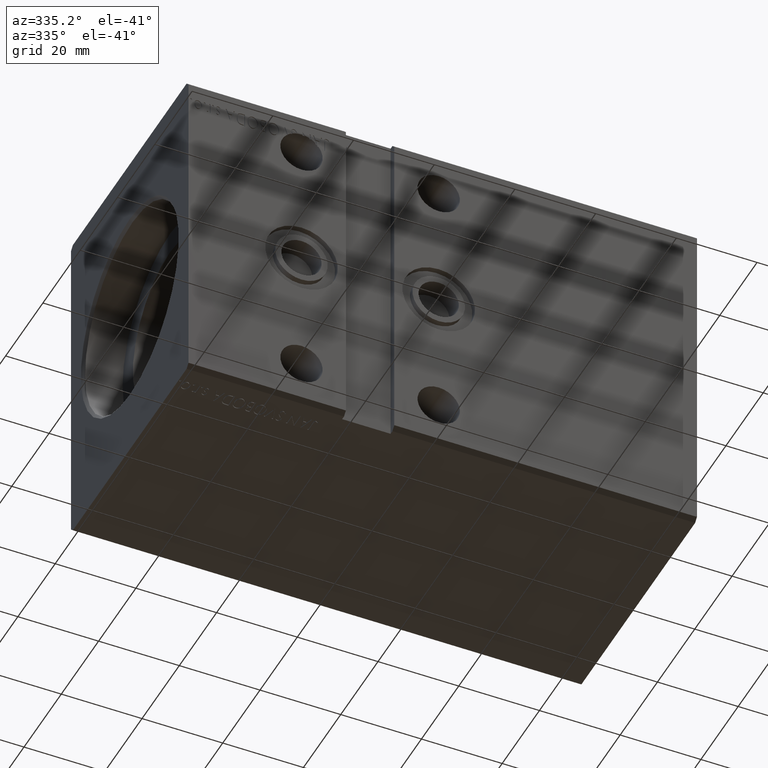
[diagram: clean part render]
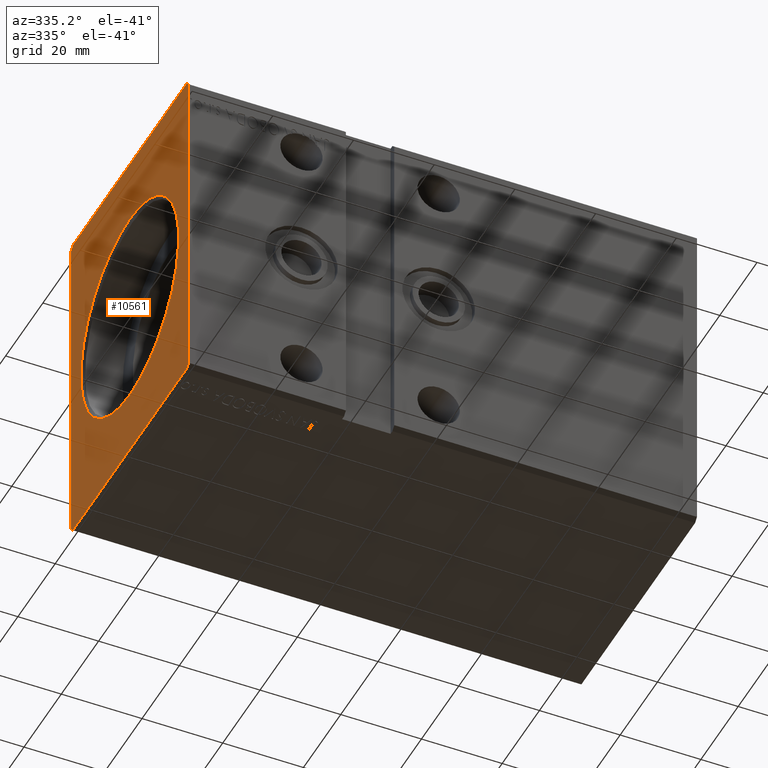
[diagram: same view with one face highlighted and labeled with its STEP entity id]
A machine part, auxiliary view. The second image highlights one B-rep face of the part: STEP entity #10561.
In plain terms, the highlighted planar face has unit normal (1, 0, 0).
Its self-contained STEP definition (entity closure, byte-faithful):
#853 = EDGE_CURVE ( 'NONE', #11930, #1156, #25419, .T. ) ;
#1024 = ORIENTED_EDGE ( 'NONE', *, *, #13849, .T. ) ;
#1156 = VERTEX_POINT ( 'NONE', #3594 ) ;
#1803 = PLANE ( 'NONE',  #23108 ) ;
#2254 = DIRECTION ( 'NONE',  ( 0.000000000000000000, 0.000000000000000000, -1.000000000000000000 ) ) ;
#2300 = EDGE_CURVE ( 'NONE', #1156, #5250, #6027, .T. ) ;
#2566 = CARTESIAN_POINT ( 'NONE',  ( 0.000000000000000000, 30.50000000000001776, -42.50000000000000711 ) ) ;
#2816 = VERTEX_POINT ( 'NONE', #11422 ) ;
#3594 = CARTESIAN_POINT ( 'NONE',  ( 0.000000000000000000, -30.50000000000000711, -42.50000000000000711 ) ) ;
#4939 = DIRECTION ( 'NONE',  ( 0.000000000000000000, 0.000000000000000000, 1.000000000000000000 ) ) ;
#5250 = VERTEX_POINT ( 'NONE', #2566 ) ;
#5342 = DIRECTION ( 'NONE',  ( 1.000000000000000000, 0.000000000000000000, 0.000000000000000000 ) ) ;
#5348 = CARTESIAN_POINT ( 'NONE',  ( 0.000000000000000000, 0.000000000000000000, 0.000000000000000000 ) ) ;
#5499 = DIRECTION ( 'NONE',  ( 0.000000000000000000, 0.000000000000000000, -1.000000000000000000 ) ) ;
#5519 = CARTESIAN_POINT ( 'NONE',  ( 0.000000000000000000, -30.50000000000000355, 42.49999999999999289 ) ) ;
#6027 = LINE ( 'NONE', #18544, #10334 ) ;
#6417 = ORIENTED_EDGE ( 'NONE', *, *, #10102, .F. ) ;
#7016 = VERTEX_POINT ( 'NONE', #32110 ) ;
#7850 = VERTEX_POINT ( 'NONE', #17894 ) ;
#7953 = CARTESIAN_POINT ( 'NONE',  ( 0.000000000000000000, -31.50000000000000000, -41.50000000000000711 ) ) ;
#8431 = LINE ( 'NONE', #30815, #35825 ) ;
#10102 = EDGE_CURVE ( 'NONE', #2816, #13351, #34808, .T. ) ;
#10189 = DIRECTION ( 'NONE',  ( 0.000000000000000000, -1.000000000000000000, 0.000000000000000000 ) ) ;
#10334 = VECTOR ( 'NONE', #39931, 1000.000000000000000 ) ;
#10561 = ADVANCED_FACE ( 'NONE', ( #36316, #14726 ), #1803, .F. ) ;
#11422 = CARTESIAN_POINT ( 'NONE',  ( 0.000000000000000000, 31.50000000000001421, 41.49999999999999289 ) ) ;
#11930 = VERTEX_POINT ( 'NONE', #7953 ) ;
#12414 = VERTEX_POINT ( 'NONE', #28424 ) ;
#12988 = EDGE_CURVE ( 'NONE', #32876, #12414, #29640, .T. ) ;
#13351 = VERTEX_POINT ( 'NONE', #18981 ) ;
#13543 = ORIENTED_EDGE ( 'NONE', *, *, #17190, .F. ) ;
#13849 = EDGE_CURVE ( 'NONE', #12414, #32876, #36846, .T. ) ;
#14153 = LINE ( 'NONE', #32865, #35167 ) ;
#14216 = VECTOR ( 'NONE', #16585, 1000.000000000000114 ) ;
#14362 = DIRECTION ( 'NONE',  ( 0.000000000000000000, -0.7071067811865462405, -0.7071067811865489050 ) ) ;
#14726 = FACE_OUTER_BOUND ( 'NONE', #23720, .T. ) ;
#15805 = DIRECTION ( 'NONE',  ( 0.000000000000000000, 0.7071067811865462405, 0.7071067811865489050 ) ) ;
#15930 = LINE ( 'NONE', #24964, #27235 ) ;
#16585 = DIRECTION ( 'NONE',  ( 0.000000000000000000, 0.7071067811865451302, -0.7071067811865500152 ) ) ;
#17190 = EDGE_CURVE ( 'NONE', #13351, #21442, #19447, .T. ) ;
#17872 = DIRECTION ( 'NONE',  ( 1.000000000000000000, 0.000000000000000000, 0.000000000000000000 ) ) ;
#17894 = CARTESIAN_POINT ( 'NONE',  ( 0.000000000000000000, 31.50000000000001421, -41.50000000000000711 ) ) ;
#17917 = ORIENTED_EDGE ( 'NONE', *, *, #32969, .F. ) ;
#18309 = EDGE_LOOP ( 'NONE', ( #1024, #23292 ) ) ;
#18475 = LINE ( 'NONE', #40469, #29292 ) ;
#18544 = CARTESIAN_POINT ( 'NONE',  ( 0.000000000000000000, -30.50000000000000711, -42.50000000000000711 ) ) ;
#18981 = CARTESIAN_POINT ( 'NONE',  ( 0.000000000000000000, 30.50000000000001421, 42.49999999999999289 ) ) ;
#19143 = AXIS2_PLACEMENT_3D ( 'NONE', #5348, #17872, #2254 ) ;
#19187 = DIRECTION ( 'NONE',  ( 0.000000000000000000, -0.7071067811865474617, 0.7071067811865474617 ) ) ;
#19447 = LINE ( 'NONE', #28685, #38268 ) ;
#21442 = VERTEX_POINT ( 'NONE', #5519 ) ;
#23108 = AXIS2_PLACEMENT_3D ( 'NONE', #27274, #39814, #5499 ) ;
#23292 = ORIENTED_EDGE ( 'NONE', *, *, #12988, .T. ) ;
#23720 = EDGE_LOOP ( 'NONE', ( #6417, #32828, #17917, #35799, #34709, #29950, #27455, #13543 ) ) ;
#24025 = CARTESIAN_POINT ( 'NONE',  ( 0.000000000000000000, 0.000000000000000000, 0.000000000000000000 ) ) ;
#24964 = CARTESIAN_POINT ( 'NONE',  ( 0.000000000000000000, -31.50000000000000000, 41.49999999999999289 ) ) ;
#25027 = AXIS2_PLACEMENT_3D ( 'NONE', #24025, #5342, #36761 ) ;
#25035 = EDGE_CURVE ( 'NONE', #7016, #11930, #15930, .T. ) ;
#25419 = LINE ( 'NONE', #32208, #14216 ) ;
#26511 = EDGE_CURVE ( 'NONE', #21442, #7016, #14153, .T. ) ;
#27235 = VECTOR ( 'NONE', #34021, 1000.000000000000000 ) ;
#27274 = CARTESIAN_POINT ( 'NONE',  ( 0.000000000000000000, 0.000000000000000000, 0.000000000000000000 ) ) ;
#27455 = ORIENTED_EDGE ( 'NONE', *, *, #26511, .F. ) ;
#28424 = CARTESIAN_POINT ( 'NONE',  ( 0.000000000000000000, 0.000000000000000000, 26.20000000000000284 ) ) ;
#28685 = CARTESIAN_POINT ( 'NONE',  ( 0.000000000000000000, 30.50000000000001421, 42.49999999999999289 ) ) ;
#29292 = VECTOR ( 'NONE', #15805, 999.9999999999998863 ) ;
#29640 = CIRCLE ( 'NONE', #25027, 26.20000000000000284 ) ;
#29950 = ORIENTED_EDGE ( 'NONE', *, *, #25035, .F. ) ;
#30815 = CARTESIAN_POINT ( 'NONE',  ( 0.000000000000000000, 31.50000000000001421, -41.50000000000000711 ) ) ;
#31912 = EDGE_CURVE ( 'NONE', #7850, #2816, #8431, .T. ) ;
#32110 = CARTESIAN_POINT ( 'NONE',  ( 0.000000000000000000, -31.50000000000000000, 41.49999999999999289 ) ) ;
#32208 = CARTESIAN_POINT ( 'NONE',  ( 0.000000000000000000, -31.50000000000000000, -41.50000000000000711 ) ) ;
#32828 = ORIENTED_EDGE ( 'NONE', *, *, #31912, .F. ) ;
#32865 = CARTESIAN_POINT ( 'NONE',  ( 0.000000000000000000, -30.50000000000000355, 42.49999999999999289 ) ) ;
#32876 = VERTEX_POINT ( 'NONE', #39462 ) ;
#32969 = EDGE_CURVE ( 'NONE', #5250, #7850, #18475, .T. ) ;
#34021 = DIRECTION ( 'NONE',  ( 0.000000000000000000, 0.000000000000000000, -1.000000000000000000 ) ) ;
#34709 = ORIENTED_EDGE ( 'NONE', *, *, #853, .F. ) ;
#34808 = LINE ( 'NONE', #38694, #37439 ) ;
#35167 = VECTOR ( 'NONE', #14362, 999.9999999999998863 ) ;
#35799 = ORIENTED_EDGE ( 'NONE', *, *, #2300, .F. ) ;
#35825 = VECTOR ( 'NONE', #4939, 1000.000000000000000 ) ;
#36316 = FACE_BOUND ( 'NONE', #18309, .T. ) ;
#36761 = DIRECTION ( 'NONE',  ( 0.000000000000000000, 0.000000000000000000, -1.000000000000000000 ) ) ;
#36846 = CIRCLE ( 'NONE', #19143, 26.20000000000000284 ) ;
#37439 = VECTOR ( 'NONE', #19187, 1000.000000000000114 ) ;
#38268 = VECTOR ( 'NONE', #10189, 1000.000000000000000 ) ;
#38694 = CARTESIAN_POINT ( 'NONE',  ( 0.000000000000000000, 31.50000000000001421, 41.49999999999999289 ) ) ;
#39462 = CARTESIAN_POINT ( 'NONE',  ( 0.000000000000000000, 3.208574613766065694E-15, -26.20000000000000284 ) ) ;
#39814 = DIRECTION ( 'NONE',  ( 1.000000000000000000, 0.000000000000000000, 0.000000000000000000 ) ) ;
#39931 = DIRECTION ( 'NONE',  ( 0.000000000000000000, 1.000000000000000000, 0.000000000000000000 ) ) ;
#40469 = CARTESIAN_POINT ( 'NONE',  ( 0.000000000000000000, 30.50000000000001776, -42.50000000000000711 ) ) ;